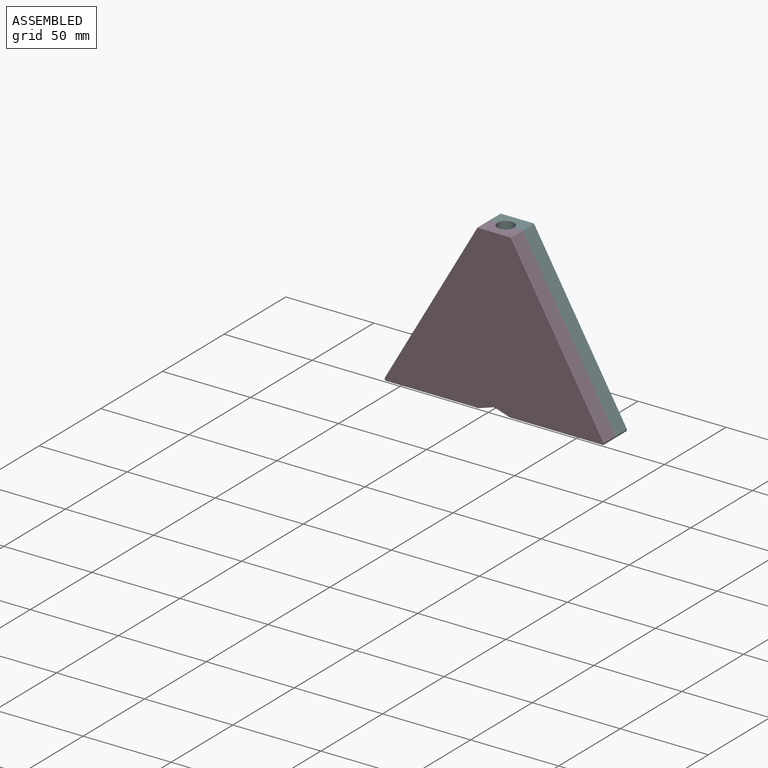
[diagram: assembled view]
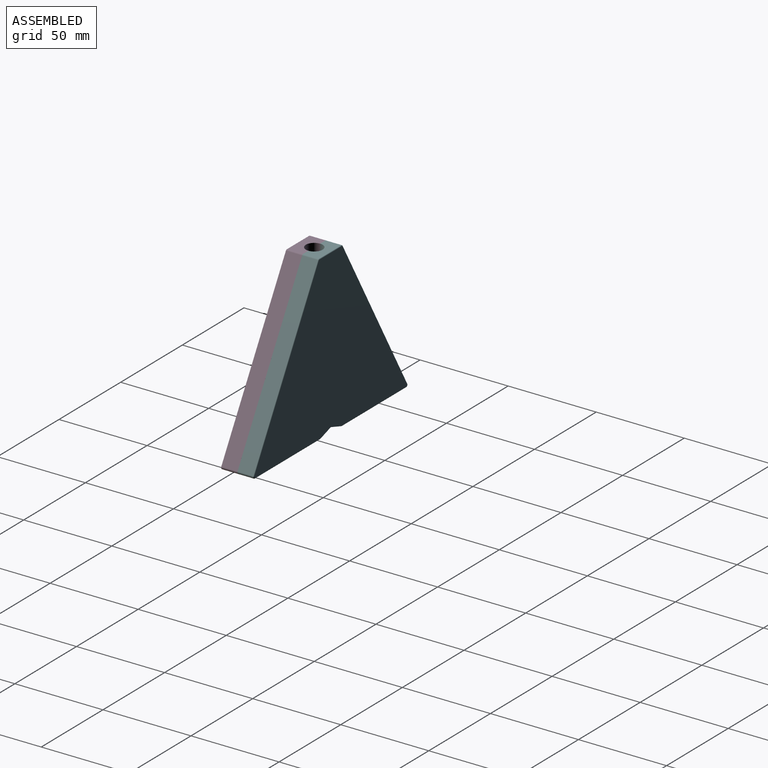
[diagram: assembled view, second angle]
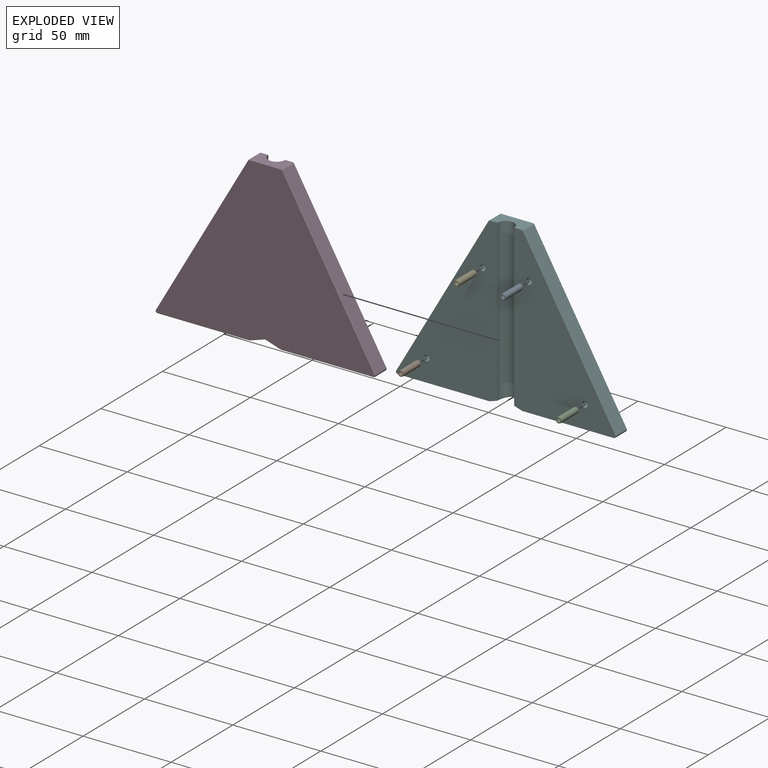
[diagram: exploded view]
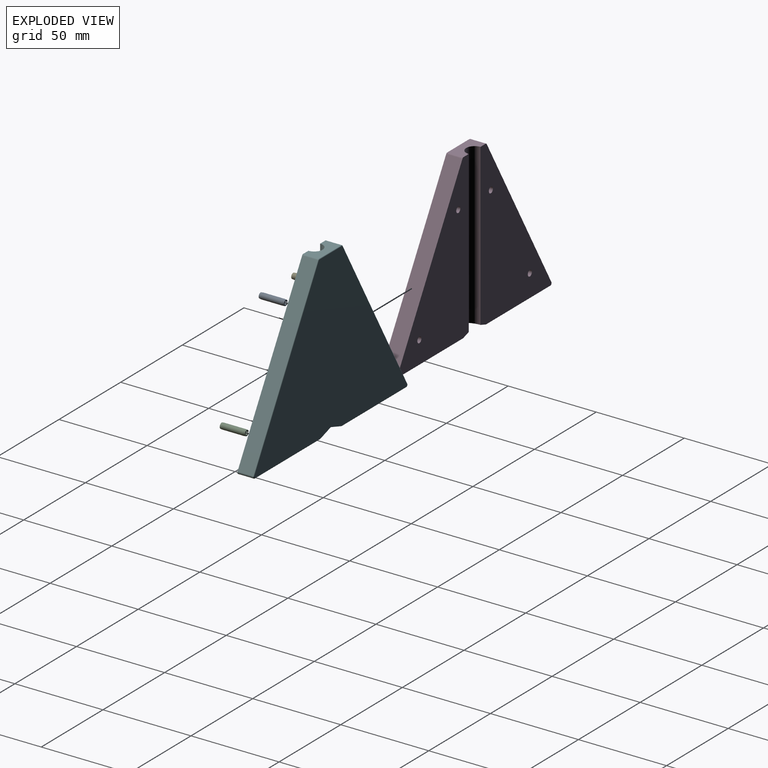
[diagram: exploded view, second angle]
ASSEMBLY  parts=6 mates=4
PART A: 8 faces, bbox 3.3x3.3x14.3 mm
  f0: cylinder r=0.95mm len=14.29mm, axis (0,0,-1), area 80.8mm2, adj f1,f3,f4,f5
  f1: plane 14.29x0.7mm, normal (-0.17,0.98,0), area 10mm2, adj f0,f2,f4,f5,f6,f7
  f2: cylinder r=1.66mm len=12.05mm, axis (0,0,-1), area 119mm2, adj f1,f3,f6,f7
  f3: plane 14.29x0.7mm, normal (-0.17,-0.98,0), area 10mm2, adj f0,f2,f4,f5,f6,f7
  f4: plane 3.1x3.08mm, normal (0,0,1), area 4.4mm2, adj f0,f1,f3,f7
  f5: plane 3.1x3.08mm, normal (0,0,-1), area 4.4mm2, adj f0,f1,f3,f6
  f6: cone r=1.66mm half-angle=5.8deg, axis (0,0,1), area 10.7mm2, adj f1,f2,f3,f5
  f7: cone r=1.55mm half-angle=5.8deg, axis (0,0,-1), area 10.7mm2, adj f1,f2,f3,f4
PART B: same geometry as A
PART C: same geometry as A
PART D: 33 faces, bbox 124.9x93x9.4 mm
  f0: plane 52.06x9.02mm, normal (0,-1,0), area 469.4mm2, adj f1,f4,f11,f23
  f1: plane 92.84x57.62mm, normal (0,0,1), area 2908.9mm2, adj f0,f3,f7,f8,f10,f11,f23,f30
  f2: plane 124x92.08mm, normal (0,0,-1), area 6586.1mm2, adj f4,f14,f15,f16,f17,f18,f19,f20
  f3: cylinder r=4.76mm len=91.36mm, axis (0,-1,0), area 1358.6mm2, adj f1,f5,f7,f22,f23,f24
  f4: cylinder r=0.38mm len=53.24mm, axis (1,0,0), area 31.4mm2, adj f0,f2,f17,f23
  f5: plane 92.84x57.62mm, normal (0,0,1), area 2908.9mm2, adj f3,f6,f7,f9,f12,f13,f24,f26
  f6: plane 52.06x9.02mm, normal (0,-1,0), area 469.4mm2, adj f5,f12,f15,f24
  f7: plane 17.88x9.02mm, normal (0,1,0), area 125.6mm2, adj f1,f3,f5,f10,f13,f20
  f8: plane 90.81x52.43mm, normal (-0.87,0.5,0), area 945.5mm2, adj f1,f10,f11,f19
  f9: plane 90.81x52.43mm, normal (0.87,0.5,0), area 945.5mm2, adj f5,f12,f13,f16
  f10: cylinder r=1.02mm len=9.02mm, axis (0,0,1), area 9.6mm2, adj f1,f7,f8,f21
  f11: cylinder r=1.02mm len=9.02mm, axis (0,0,-1), area 19.2mm2, adj f0,f1,f8,f17
  f12: cylinder r=1.02mm len=9.02mm, axis (0,0,1), area 19.2mm2, adj f5,f6,f9,f14
  f13: cylinder r=1.02mm len=9.02mm, axis (0,0,-1), area 9.6mm2, adj f5,f7,f9,f18
  f14: torus R=0.64mm, axis (0,0,1), area 1.1mm2, adj f2,f12,f15,f16
  f15: cylinder r=0.38mm len=53.24mm, axis (1,0,0), area 31.4mm2, adj f2,f6,f14,f24
  f16: cylinder r=0.38mm len=91mm, axis (-0.5,0.87,0), area 62.8mm2, adj f2,f9,f14,f18
  f17: torus R=0.64mm, axis (0,0,1), area 1.1mm2, adj f2,f4,f11,f19
  f18: torus R=0.64mm, axis (0,0,1), area 0.5mm2, adj f2,f13,f16,f20
  f19: cylinder r=0.38mm len=91mm, axis (-0.5,-0.87,0), area 62.8mm2, adj f2,f8,f17,f21
  f20: cylinder r=0.38mm len=17.88mm, axis (-1,0,0), area 10.7mm2, adj f2,f7,f18,f21
  f21: torus R=0.64mm, axis (0,0,1), area 0.5mm2, adj f2,f10,f19,f20
  f22: cylinder r=1.6mm len=4.66mm, axis (0,0,-1), area 4.7mm2, adj f2,f3,f23,f24
  f23: plane 9.4x8.81mm, normal (0.31,-0.95,0), area 70.7mm2, adj f0,f1,f2,f3,f4,f22
  f24: plane 9.4x8.81mm, normal (-0.31,-0.95,0), area 70.7mm2, adj f2,f3,f5,f6,f15,f22
  f25: cone r=0mm half-angle=59deg, axis (0,0,1), area 10mm2, adj f26
  f26: cylinder r=1.65mm len=7.94mm, axis (0,0,1), area 82.3mm2, adj f5,f25
  f27: cone r=0mm half-angle=59deg, axis (0,0,1), area 10mm2, adj f28
  f28: cylinder r=1.65mm len=7.94mm, axis (0,0,1), area 82.3mm2, adj f5,f27
  f29: cone r=0mm half-angle=59deg, axis (0,0,1), area 10mm2, adj f30
  f30: cylinder r=1.65mm len=7.94mm, axis (0,0,1), area 82.3mm2, adj f1,f29
  f31: cone r=0mm half-angle=59deg, axis (0,0,1), area 10mm2, adj f32
  f32: cylinder r=1.65mm len=7.94mm, axis (0,0,1), area 82.3mm2, adj f1,f31
PART E: same geometry as A
PART F: same geometry as D
PLACE A rot(axis=(1,0,0),90deg) t=(13.19,0,21.02)mm
PLACE B rot(axis=(1,0,0),90deg) t=(-44.79,0,-33.72)mm
PLACE C rot(axis=(1,0,0),90deg) t=(44.79,0,-33.72)mm
PLACE D rot(axis=(0,-0.71,-0.71),180deg) t=(0,-9.4,102.39)mm
PLACE E rot(axis=(1,0,0),90deg) t=(-13.19,0,21.02)mm
PLACE F rot(axis=(1,0,0),90deg) t=(0,9.4,102.39)mm
MATE fastened B.f0 <-> F.f31  axis (0,-1,0) through (-44.79,0,-33.72)mm
MATE fastened C.f0 <-> F.f27  axis (0,-1,0) through (44.79,0,-33.72)mm
MATE fastened E.f0 <-> F.f29  axis (0,-1,0) through (-13.19,0,21.02)mm
MATE fastened A.f0 <-> F.f25  axis (0,-1,0) through (13.19,0,21.02)mm
